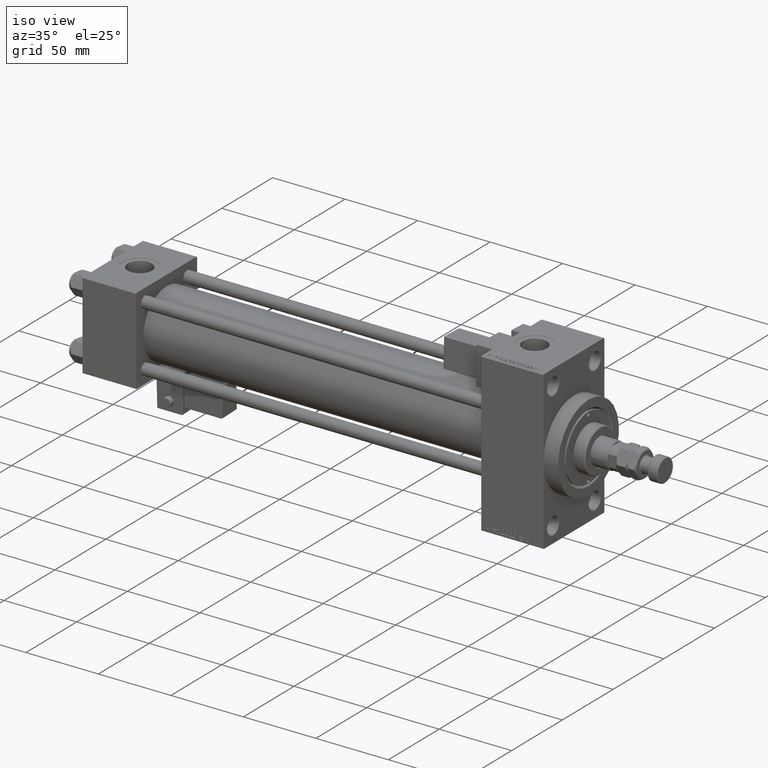
[diagram: clean part render]
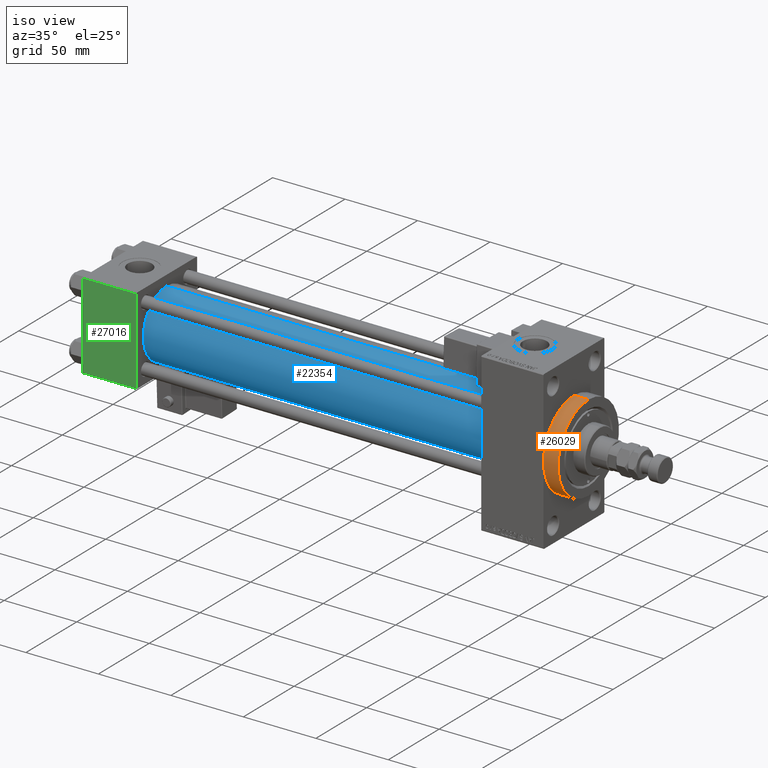
[diagram: same view with three faces highlighted in distinct colors, each labeled with its STEP entity id]
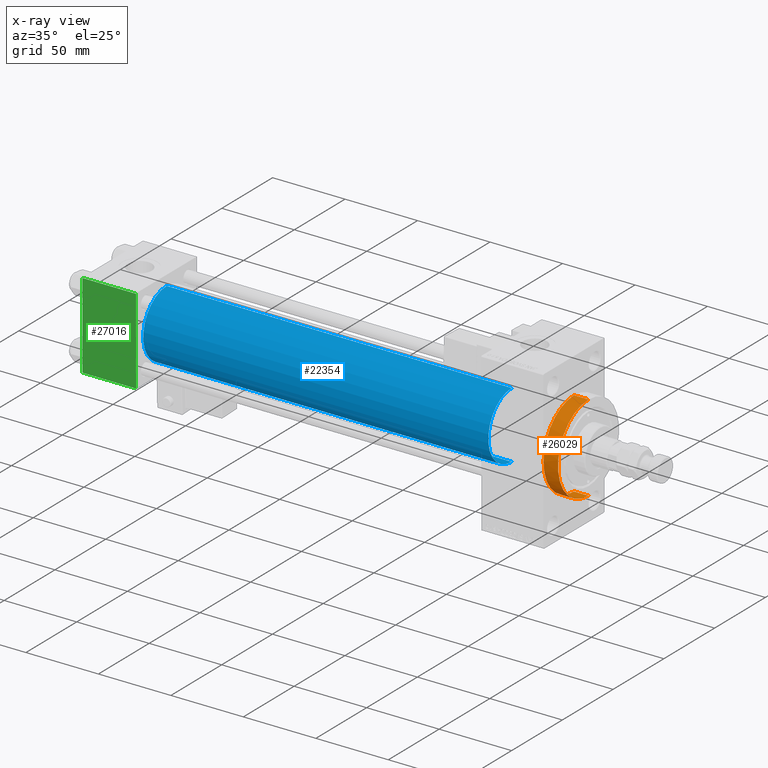
[diagram: x-ray of the same camera — body ghosted, the three highlighted faces saturated]
A machine part, iso view with three faces highlighted in distinct colors.
The next image is the same camera in x-ray (body ghosted, the three faces saturated) — at least one of them is partly hidden behind the body in this view.
Their STEP definitions:

[orange] entity #26029 — the highlighted cylindrical surface (partial cylindrical patch) has radius 30 mm, axis along (-1, -0, -0).
#2687 = EDGE_CURVE ( 'NONE', #28171, #48174, #3537, .T. ) ;
#3104 = DIRECTION ( 'NONE',  ( 0.000000000000000000, 0.000000000000000000, 1.000000000000000000 ) ) ;
#3537 = LINE ( 'NONE', #41526, #24152 ) ;
#6149 = CIRCLE ( 'NONE', #30280, 30.00000000000000000 ) ;
#7279 = CARTESIAN_POINT ( 'NONE',  ( 327.9999999999999432, 3.673940397442059178E-15, -30.00000000000000000 ) ) ;
#9103 = CIRCLE ( 'NONE', #43579, 30.00000000000000000 ) ;
#10056 = EDGE_CURVE ( 'NONE', #10606, #48627, #21745, .T. ) ;
#10070 = CARTESIAN_POINT ( 'NONE',  ( 317.9999999999999432, 0.000000000000000000, 30.00000000000000000 ) ) ;
#10606 = VERTEX_POINT ( 'NONE', #38011 ) ;
#11987 = FACE_OUTER_BOUND ( 'NONE', #41642, .T. ) ;
#12626 = ORIENTED_EDGE ( 'NONE', *, *, #44789, .F. ) ;
#15022 = CARTESIAN_POINT ( 'NONE',  ( 317.9999999999999432, 0.000000000000000000, 0.000000000000000000 ) ) ;
#15333 = LINE ( 'NONE', #40169, #40806 ) ;
#15781 = DIRECTION ( 'NONE',  ( -1.000000000000000000, -0.000000000000000000, -0.000000000000000000 ) ) ;
#15847 = AXIS2_PLACEMENT_3D ( 'NONE', #16297, #15781, #3104 ) ;
#16297 = CARTESIAN_POINT ( 'NONE',  ( 327.9999999999999432, 0.000000000000000000, 0.000000000000000000 ) ) ;
#18305 = AXIS2_PLACEMENT_3D ( 'NONE', #52657, #40007, #52397 ) ;
#21014 = DIRECTION ( 'NONE',  ( -1.000000000000000000, -0.000000000000000000, -0.000000000000000000 ) ) ;
#21745 = CIRCLE ( 'NONE', #18305, 30.00000000000000000 ) ;
#22054 = EDGE_CURVE ( 'NONE', #25172, #48627, #15333, .T. ) ;
#23177 = DIRECTION ( 'NONE',  ( -1.000000000000000000, -0.000000000000000000, -0.000000000000000000 ) ) ;
#24152 = VECTOR ( 'NONE', #21014, 1000.000000000000000 ) ;
#25172 = VERTEX_POINT ( 'NONE', #7279 ) ;
#25454 = CARTESIAN_POINT ( 'NONE',  ( 327.9999999999999432, 0.000000000000000000, 30.00000000000000000 ) ) ;
#25744 = CARTESIAN_POINT ( 'NONE',  ( 327.9999999999999432, 0.000000000000000000, 0.000000000000000000 ) ) ;
#26029 = ADVANCED_FACE ( 'NONE', ( #11987 ), #37076, .T. ) ;
#26802 = ORIENTED_EDGE ( 'NONE', *, *, #30034, .T. ) ;
#26911 = DIRECTION ( 'NONE',  ( 0.000000000000000000, 0.000000000000000000, -1.000000000000000000 ) ) ;
#28171 = VERTEX_POINT ( 'NONE', #25454 ) ;
#28963 = ORIENTED_EDGE ( 'NONE', *, *, #10056, .T. ) ;
#30034 = EDGE_CURVE ( 'NONE', #48174, #10606, #9103, .T. ) ;
#30178 = ORIENTED_EDGE ( 'NONE', *, *, #2687, .T. ) ;
#30280 = AXIS2_PLACEMENT_3D ( 'NONE', #25744, #42961, #34606 ) ;
#30948 = DIRECTION ( 'NONE',  ( 1.000000000000000000, 0.000000000000000000, 0.000000000000000000 ) ) ;
#34606 = DIRECTION ( 'NONE',  ( 0.000000000000000000, 0.000000000000000000, -1.000000000000000000 ) ) ;
#37076 = CYLINDRICAL_SURFACE ( 'NONE', #15847, 30.00000000000000000 ) ;
#38011 = CARTESIAN_POINT ( 'NONE',  ( 317.9999999999999432, -30.00000000000000000, 0.000000000000000000 ) ) ;
#40007 = DIRECTION ( 'NONE',  ( 1.000000000000000000, 0.000000000000000000, 0.000000000000000000 ) ) ;
#40169 = CARTESIAN_POINT ( 'NONE',  ( 327.9999999999999432, 3.673940397442059178E-15, -30.00000000000000000 ) ) ;
#40806 = VECTOR ( 'NONE', #23177, 1000.000000000000000 ) ;
#41526 = CARTESIAN_POINT ( 'NONE',  ( 327.9999999999999432, 0.000000000000000000, 30.00000000000000000 ) ) ;
#41642 = EDGE_LOOP ( 'NONE', ( #48812, #12626, #30178, #26802, #28963 ) ) ;
#42961 = DIRECTION ( 'NONE',  ( 1.000000000000000000, 0.000000000000000000, 0.000000000000000000 ) ) ;
#43579 = AXIS2_PLACEMENT_3D ( 'NONE', #15022, #30948, #26911 ) ;
#44789 = EDGE_CURVE ( 'NONE', #28171, #25172, #6149, .T. ) ;
#48174 = VERTEX_POINT ( 'NONE', #10070 ) ;
#48627 = VERTEX_POINT ( 'NONE', #49250 ) ;
#48812 = ORIENTED_EDGE ( 'NONE', *, *, #22054, .F. ) ;
#49250 = CARTESIAN_POINT ( 'NONE',  ( 317.9999999999999432, 3.673940397442059178E-15, -30.00000000000000000 ) ) ;
#52397 = DIRECTION ( 'NONE',  ( 0.000000000000000000, 0.000000000000000000, -1.000000000000000000 ) ) ;
#52657 = CARTESIAN_POINT ( 'NONE',  ( 317.9999999999999432, 0.000000000000000000, 0.000000000000000000 ) ) ;

[blue] entity #22354 — the highlighted cylindrical surface (partial cylindrical patch) has radius 23 mm, axis along (-1, -0, -0).
#2530 = DIRECTION ( 'NONE',  ( 0.000000000000000000, 0.000000000000000000, 1.000000000000000000 ) ) ;
#2772 = VERTEX_POINT ( 'NONE', #33158 ) ;
#2850 = DIRECTION ( 'NONE',  ( 0.000000000000000000, 0.000000000000000000, 1.000000000000000000 ) ) ;
#6585 = CARTESIAN_POINT ( 'NONE',  ( 37.00000000000000711, -2.602085213965210642E-15, 0.000000000000000000 ) ) ;
#6626 = CYLINDRICAL_SURFACE ( 'NONE', #8918, 23.00000000000000000 ) ;
#6636 = DIRECTION ( 'NONE',  ( -1.000000000000000000, -0.000000000000000000, -0.000000000000000000 ) ) ;
#6765 = EDGE_CURVE ( 'NONE', #2772, #34142, #42402, .T. ) ;
#8918 = AXIS2_PLACEMENT_3D ( 'NONE', #44139, #36036, #2850 ) ;
#9716 = VERTEX_POINT ( 'NONE', #23869 ) ;
#9884 = CARTESIAN_POINT ( 'NONE',  ( 274.9999999999999432, -2.602085213965210642E-15, 23.00000000000000000 ) ) ;
#12179 = ORIENTED_EDGE ( 'NONE', *, *, #23288, .F. ) ;
#18415 = VECTOR ( 'NONE', #46590, 1000.000000000000000 ) ;
#18776 = LINE ( 'NONE', #9884, #18415 ) ;
#22354 = ADVANCED_FACE ( 'NONE', ( #51964 ), #6626, .T. ) ;
#23162 = EDGE_CURVE ( 'NONE', #9716, #2772, #18776, .T. ) ;
#23288 = EDGE_CURVE ( 'NONE', #23941, #34142, #36045, .T. ) ;
#23381 = CARTESIAN_POINT ( 'NONE',  ( 274.9999999999999432, 2.146024240737016609E-16, -23.00000000000000000 ) ) ;
#23869 = CARTESIAN_POINT ( 'NONE',  ( 274.9999999999999432, -2.602085213965210642E-15, 23.00000000000000000 ) ) ;
#23941 = VERTEX_POINT ( 'NONE', #32953 ) ;
#25495 = EDGE_LOOP ( 'NONE', ( #12179, #45780, #45951, #49181 ) ) ;
#28469 = CIRCLE ( 'NONE', #31928, 23.00000000000000000 ) ;
#31928 = AXIS2_PLACEMENT_3D ( 'NONE', #32032, #44449, #52005 ) ;
#32032 = CARTESIAN_POINT ( 'NONE',  ( 274.9999999999999432, -2.602085213965210642E-15, 0.000000000000000000 ) ) ;
#32953 = CARTESIAN_POINT ( 'NONE',  ( 274.9999999999999432, 2.146024240737016609E-16, -23.00000000000000000 ) ) ;
#33158 = CARTESIAN_POINT ( 'NONE',  ( 37.00000000000000711, -2.602085213965210642E-15, 23.00000000000000000 ) ) ;
#34142 = VERTEX_POINT ( 'NONE', #48723 ) ;
#36036 = DIRECTION ( 'NONE',  ( -1.000000000000000000, -0.000000000000000000, -0.000000000000000000 ) ) ;
#36045 = LINE ( 'NONE', #23381, #46010 ) ;
#39516 = DIRECTION ( 'NONE',  ( 1.000000000000000000, -0.000000000000000000, 0.000000000000000000 ) ) ;
#39709 = AXIS2_PLACEMENT_3D ( 'NONE', #6585, #39516, #2530 ) ;
#42402 = CIRCLE ( 'NONE', #39709, 23.00000000000000000 ) ;
#43250 = EDGE_CURVE ( 'NONE', #9716, #23941, #28469, .T. ) ;
#44139 = CARTESIAN_POINT ( 'NONE',  ( 274.9999999999999432, -2.602085213965210642E-15, 0.000000000000000000 ) ) ;
#44449 = DIRECTION ( 'NONE',  ( 1.000000000000000000, 0.000000000000000000, 0.000000000000000000 ) ) ;
#45780 = ORIENTED_EDGE ( 'NONE', *, *, #43250, .F. ) ;
#45951 = ORIENTED_EDGE ( 'NONE', *, *, #23162, .T. ) ;
#46010 = VECTOR ( 'NONE', #6636, 1000.000000000000000 ) ;
#46590 = DIRECTION ( 'NONE',  ( -1.000000000000000000, -0.000000000000000000, -0.000000000000000000 ) ) ;
#48723 = CARTESIAN_POINT ( 'NONE',  ( 37.00000000000000711, 2.146024240737016609E-16, -23.00000000000000000 ) ) ;
#49181 = ORIENTED_EDGE ( 'NONE', *, *, #6765, .T. ) ;
#51964 = FACE_OUTER_BOUND ( 'NONE', #25495, .T. ) ;
#52005 = DIRECTION ( 'NONE',  ( 0.000000000000000000, 0.000000000000000000, -1.000000000000000000 ) ) ;

[green] entity #27016 — the highlighted planar face has unit normal (0, 1, 0).
#1583 = ORIENTED_EDGE ( 'NONE', *, *, #42388, .T. ) ;
#2300 = LINE ( 'NONE', #7415, #16841 ) ;
#4553 = VERTEX_POINT ( 'NONE', #19863 ) ;
#4806 = DIRECTION ( 'NONE',  ( 1.000000000000000000, 0.000000000000000000, 0.000000000000000000 ) ) ;
#5070 = CARTESIAN_POINT ( 'NONE',  ( 37.00000000000000000, -30.00000000000000000, -29.50000000000001776 ) ) ;
#7170 = VECTOR ( 'NONE', #11548, 1000.000000000000000 ) ;
#7415 = CARTESIAN_POINT ( 'NONE',  ( 37.00000000000000000, -30.00000000000000000, 29.49999999999999289 ) ) ;
#8143 = FACE_OUTER_BOUND ( 'NONE', #42145, .T. ) ;
#11548 = DIRECTION ( 'NONE',  ( 0.000000000000000000, 0.000000000000000000, -1.000000000000000000 ) ) ;
#11809 = CARTESIAN_POINT ( 'NONE',  ( 0.000000000000000000, -30.00000000000000000, 29.99999999999999289 ) ) ;
#12412 = PLANE ( 'NONE',  #22781 ) ;
#16539 = EDGE_CURVE ( 'NONE', #22310, #45654, #2300, .T. ) ;
#16841 = VECTOR ( 'NONE', #23631, 1000.000000000000000 ) ;
#18940 = VECTOR ( 'NONE', #4806, 1000.000000000000000 ) ;
#18950 = CARTESIAN_POINT ( 'NONE',  ( 37.00000000000000000, -30.00000000000000000, 29.99999999999999289 ) ) ;
#19104 = VECTOR ( 'NONE', #43790, 1000.000000000000000 ) ;
#19863 = CARTESIAN_POINT ( 'NONE',  ( 37.00000000000000000, -30.00000000000000000, -29.50000000000001776 ) ) ;
#19977 = CARTESIAN_POINT ( 'NONE',  ( 37.00000000000000000, -30.00000000000000000, 29.99999999999999289 ) ) ;
#22059 = EDGE_CURVE ( 'NONE', #45654, #34804, #48261, .T. ) ;
#22310 = VERTEX_POINT ( 'NONE', #35506 ) ;
#22781 = AXIS2_PLACEMENT_3D ( 'NONE', #19977, #33193, #25114 ) ;
#23631 = DIRECTION ( 'NONE',  ( -1.000000000000000000, 0.000000000000000000, 0.000000000000000000 ) ) ;
#25114 = DIRECTION ( 'NONE',  ( 0.000000000000000000, -0.000000000000000000, 1.000000000000000000 ) ) ;
#27016 = ADVANCED_FACE ( 'NONE', ( #8143 ), #12412, .F. ) ;
#29156 = ORIENTED_EDGE ( 'NONE', *, *, #22059, .T. ) ;
#30050 = CARTESIAN_POINT ( 'NONE',  ( 0.000000000000000000, -30.00000000000000000, 29.49999999999999289 ) ) ;
#33193 = DIRECTION ( 'NONE',  ( -0.000000000000000000, 1.000000000000000000, 0.000000000000000000 ) ) ;
#34804 = VERTEX_POINT ( 'NONE', #46669 ) ;
#35506 = CARTESIAN_POINT ( 'NONE',  ( 37.00000000000000000, -30.00000000000000000, 29.49999999999999289 ) ) ;
#38000 = LINE ( 'NONE', #5070, #18940 ) ;
#39218 = LINE ( 'NONE', #18950, #19104 ) ;
#40784 = ORIENTED_EDGE ( 'NONE', *, *, #45740, .F. ) ;
#42145 = EDGE_LOOP ( 'NONE', ( #29156, #1583, #40784, #46019 ) ) ;
#42388 = EDGE_CURVE ( 'NONE', #34804, #4553, #38000, .T. ) ;
#43790 = DIRECTION ( 'NONE',  ( 0.000000000000000000, 0.000000000000000000, -1.000000000000000000 ) ) ;
#45654 = VERTEX_POINT ( 'NONE', #30050 ) ;
#45740 = EDGE_CURVE ( 'NONE', #22310, #4553, #39218, .T. ) ;
#46019 = ORIENTED_EDGE ( 'NONE', *, *, #16539, .T. ) ;
#46669 = CARTESIAN_POINT ( 'NONE',  ( 0.000000000000000000, -30.00000000000000000, -29.50000000000001776 ) ) ;
#48261 = LINE ( 'NONE', #11809, #7170 ) ;